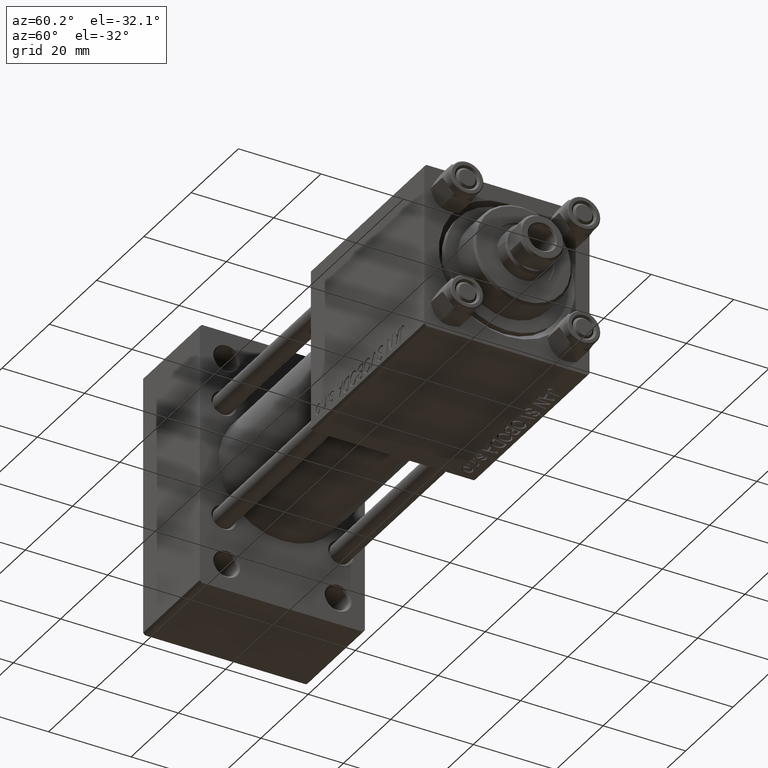
[diagram: clean part render]
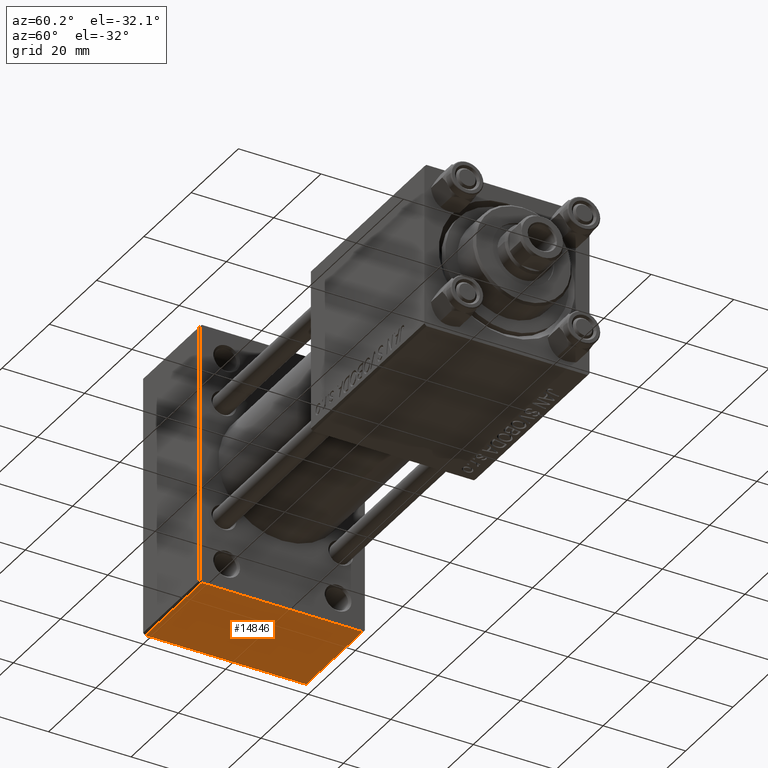
[diagram: same view with one face highlighted and labeled with its STEP entity id]
A machine part, auxiliary view. The second image highlights one B-rep face of the part: STEP entity #14846.
In plain terms, the highlighted planar face has unit normal (0, 0, -1).
Its self-contained STEP definition (entity closure, byte-faithful):
#3126 = CARTESIAN_POINT ( 'NONE',  ( 24.00000000000000000, 19.49999999999999645, -31.99999999999999289 ) ) ;
#4583 = DIRECTION ( 'NONE',  ( -1.000000000000000000, 0.000000000000000000, -0.000000000000000000 ) ) ;
#9497 = CARTESIAN_POINT ( 'NONE',  ( 0.000000000000000000, -19.49999999999999645, -31.99999999999999289 ) ) ;
#9508 = EDGE_CURVE ( 'NONE', #33374, #19105, #33708, .T. ) ;
#12530 = ORIENTED_EDGE ( 'NONE', *, *, #36322, .T. ) ;
#13527 = DIRECTION ( 'NONE',  ( 0.000000000000000000, -1.000000000000000000, 0.000000000000000000 ) ) ;
#14846 = ADVANCED_FACE ( 'NONE', ( #49528 ), #46241, .T. ) ;
#17771 = CARTESIAN_POINT ( 'NONE',  ( 0.000000000000000000, -19.49999999999999645, -31.99999999999999289 ) ) ;
#17833 = DIRECTION ( 'NONE',  ( -1.000000000000000000, 0.000000000000000000, 0.000000000000000000 ) ) ;
#19105 = VERTEX_POINT ( 'NONE', #17771 ) ;
#20297 = VECTOR ( 'NONE', #13527, 1000.000000000000000 ) ;
#21049 = LINE ( 'NONE', #36707, #40604 ) ;
#21811 = DIRECTION ( 'NONE',  ( 1.000000000000000000, 0.000000000000000000, 0.000000000000000000 ) ) ;
#26612 = ORIENTED_EDGE ( 'NONE', *, *, #39728, .F. ) ;
#29540 = AXIS2_PLACEMENT_3D ( 'NONE', #38661, #42964, #4583 ) ;
#30617 = ORIENTED_EDGE ( 'NONE', *, *, #40839, .T. ) ;
#33374 = VERTEX_POINT ( 'NONE', #41356 ) ;
#33708 = LINE ( 'NONE', #9497, #47227 ) ;
#33901 = LINE ( 'NONE', #3126, #44677 ) ;
#36322 = EDGE_CURVE ( 'NONE', #46398, #33374, #41300, .T. ) ;
#36707 = CARTESIAN_POINT ( 'NONE',  ( 0.000000000000000000, 19.99999999999999645, -31.99999999999999289 ) ) ;
#38661 = CARTESIAN_POINT ( 'NONE',  ( 24.00000000000000000, 19.99999999999999645, -31.99999999999999289 ) ) ;
#39728 = EDGE_CURVE ( 'NONE', #49832, #19105, #21049, .T. ) ;
#40604 = VECTOR ( 'NONE', #40759, 1000.000000000000000 ) ;
#40759 = DIRECTION ( 'NONE',  ( 0.000000000000000000, -1.000000000000000000, 0.000000000000000000 ) ) ;
#40839 = EDGE_CURVE ( 'NONE', #49832, #46398, #33901, .T. ) ;
#41053 = CARTESIAN_POINT ( 'NONE',  ( 24.00000000000000000, 19.99999999999999645, -31.99999999999999289 ) ) ;
#41300 = LINE ( 'NONE', #41053, #20297 ) ;
#41356 = CARTESIAN_POINT ( 'NONE',  ( 24.00000000000000000, -19.49999999999999645, -31.99999999999999289 ) ) ;
#42964 = DIRECTION ( 'NONE',  ( 0.000000000000000000, 0.000000000000000000, -1.000000000000000000 ) ) ;
#43765 = ORIENTED_EDGE ( 'NONE', *, *, #9508, .T. ) ;
#44130 = CARTESIAN_POINT ( 'NONE',  ( 24.00000000000000000, 19.49999999999999645, -31.99999999999999289 ) ) ;
#44677 = VECTOR ( 'NONE', #21811, 1000.000000000000000 ) ;
#45193 = EDGE_LOOP ( 'NONE', ( #26612, #30617, #12530, #43765 ) ) ;
#46095 = CARTESIAN_POINT ( 'NONE',  ( 0.000000000000000000, 19.49999999999999645, -31.99999999999999289 ) ) ;
#46241 = PLANE ( 'NONE',  #29540 ) ;
#46398 = VERTEX_POINT ( 'NONE', #44130 ) ;
#47227 = VECTOR ( 'NONE', #17833, 1000.000000000000000 ) ;
#49528 = FACE_OUTER_BOUND ( 'NONE', #45193, .T. ) ;
#49832 = VERTEX_POINT ( 'NONE', #46095 ) ;